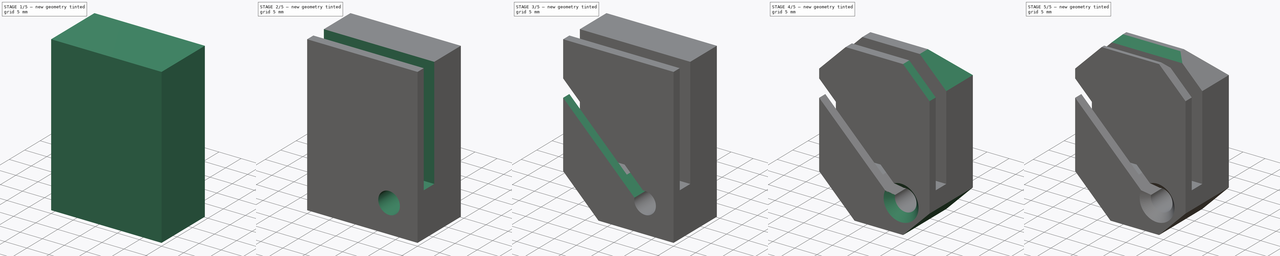
[diagram: build sequence overview — one tinted view per stage of 5, left to right]
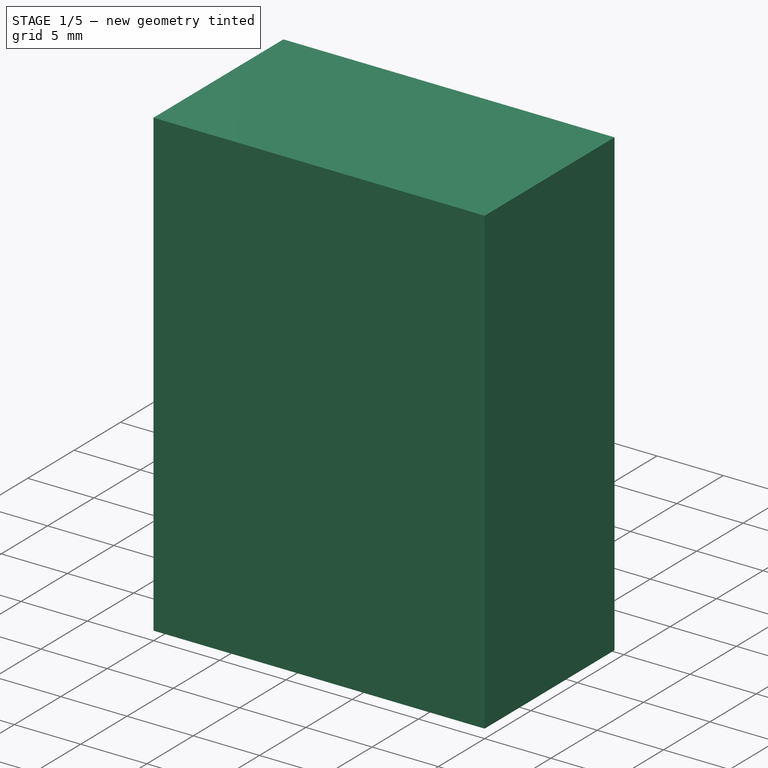
[diagram: stage 1 of 5 — iso view after this stage's code; geometry added in this stage tinted green]
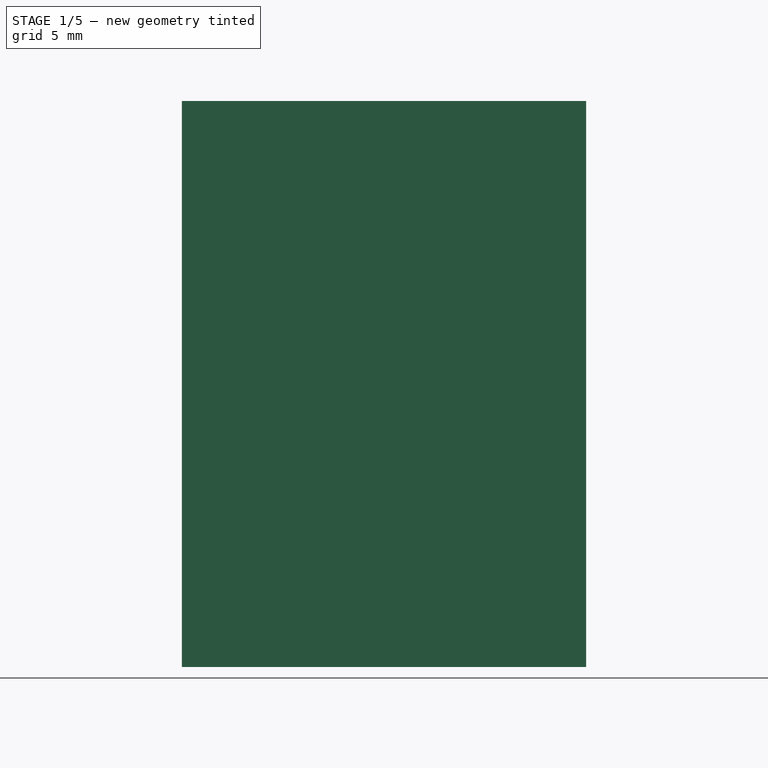
[diagram: stage 1 of 5 — front view after this stage's code; geometry added in this stage tinted green]
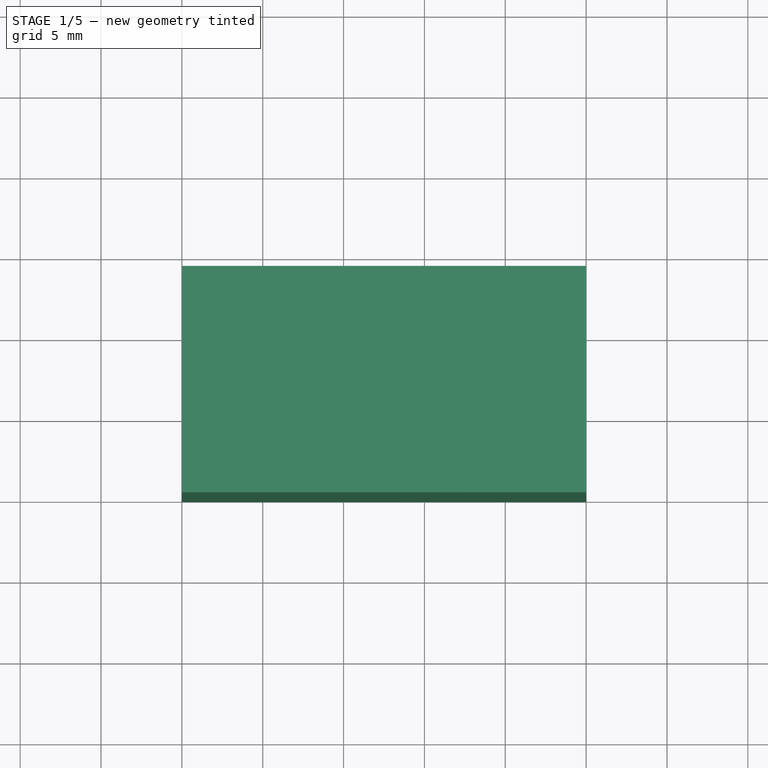
[diagram: stage 1 of 5 — top view after this stage's code; geometry added in this stage tinted green]
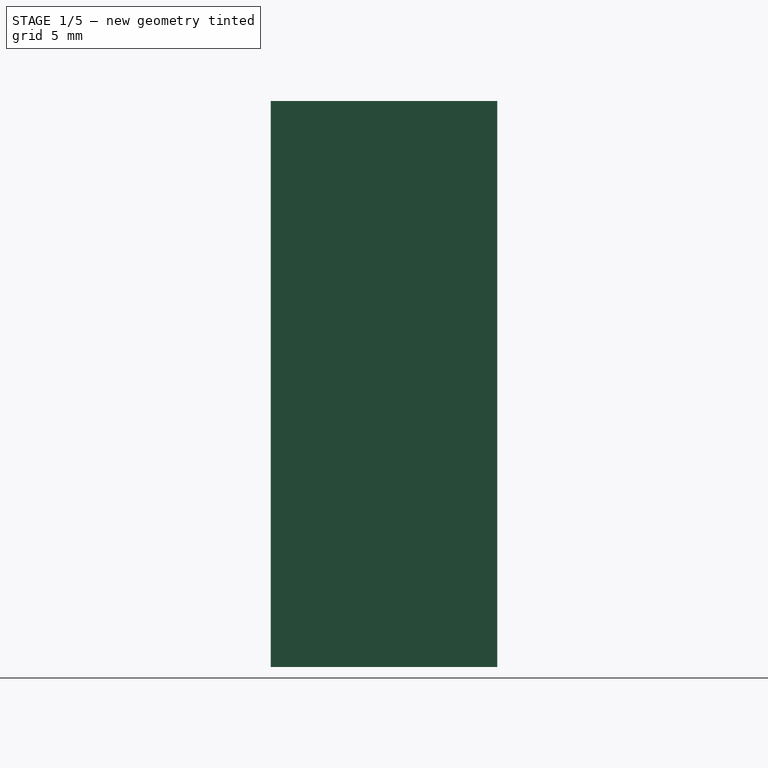
[diagram: stage 1 of 5 — right view after this stage's code; geometry added in this stage tinted green]
FCSTD DOCUMENT  (FreeCAD 0.16R5521 (Git))
Label: sujeccion-filamento
License: All rights reserved
LicenseURL: http://es.wikipedia.org/wiki/Todos_los_derechos_reservados
objects: PartDesign::Chamfer×8, Sketcher::SketchObject×6, PartDesign::Pocket×4, Part::Box×1, PartDesign::Pad×1, Part::MultiFuse×1
note: 26 computed .brp shape members not serialized (recipe doc carries the construction recipe); baked Part::Feature solids carry a one-line shape summary decoded from their .brp

FEATURE [Part::Box] Box  label="Cubo"
  Height = 35
  Length = 25
  Width = 14
FEATURE [Sketcher::SketchObject] Sketch003
  Placement = pos=(0,0,0) rot=(1,0,0;1.5708rad)
  sketch-geometry (6):
    g0: LineSegment StartX=14.5 StartY=23 StartZ=0 EndX=10.5 EndY=23 EndZ=0
    g1: LineSegment StartX=10.5 StartY=23 StartZ=0 EndX=10.5 EndY=27 EndZ=0
    g2: LineSegment StartX=10.5 StartY=27 StartZ=0 EndX=14.5 EndY=27 EndZ=0
    g3: LineSegment StartX=14.5 StartY=27 StartZ=0 EndX=14.5 EndY=23 EndZ=0
    g4: LineSegment [constr] StartX=25 StartY=10 StartZ=0 EndX=14.5 EndY=23 EndZ=0
    g5: LineSegment [constr] StartX=10.5 StartY=23 StartZ=0 EndX=0 EndY=10 EndZ=0
  constraints (13):
    c: Coincident(g0,g1)
    c: Coincident(g1,g2)
    c: Coincident(g2,g3)
    c: Coincident(g3,g0)
    c: Horizontal(g0)
    c: Horizontal(g2)
    c: Vertical(g1)
    c: Vertical(g3)
    c: Distance(g1) = 4
    c: Equal(g0,g1)
    c: Coincident(g4,g0)
    c: Coincident(g5,g0)
    c: Equal(g4,g5)
FEATURE [Sketcher::SketchObject] Sketch004
  Placement = pos=(0,0,0) rot=(1,0,0;1.5708rad)
FEATURE [PartDesign::Pad] Pad
  Length = 4
  Length2 = 100
  Placement = pos=(0,0,0) rot=(1,0,0;1.5708rad)
  Reversed = true
  Sketch = -> Sketch003
  Type = 0
FEATURE [PartDesign::Chamfer] Chamfer
  Base = -> Pad [Edge4,Edge7,Edge10,Edge12]
  Placement = pos=(0,0,0) rot=(1,0,0;1.5708rad)
  Size = 1.99
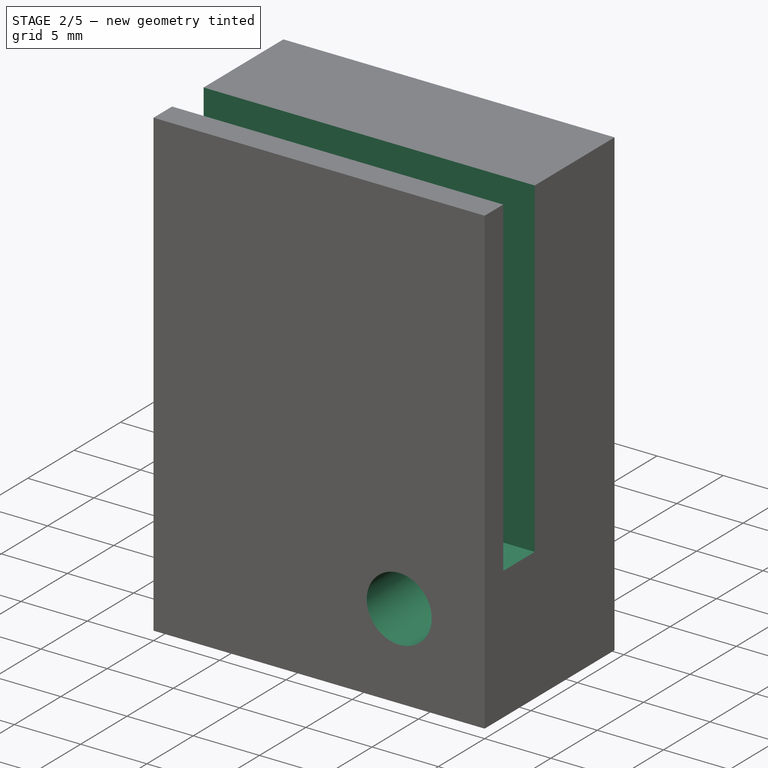
[diagram: stage 2 of 5 — iso view after this stage's code; geometry added in this stage tinted green]
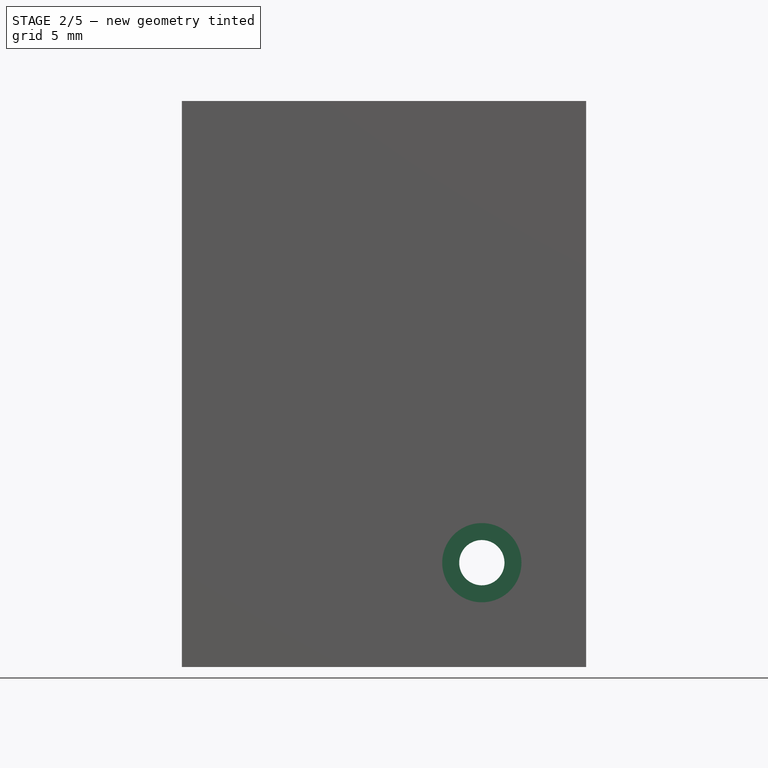
[diagram: stage 2 of 5 — front view after this stage's code; geometry added in this stage tinted green]
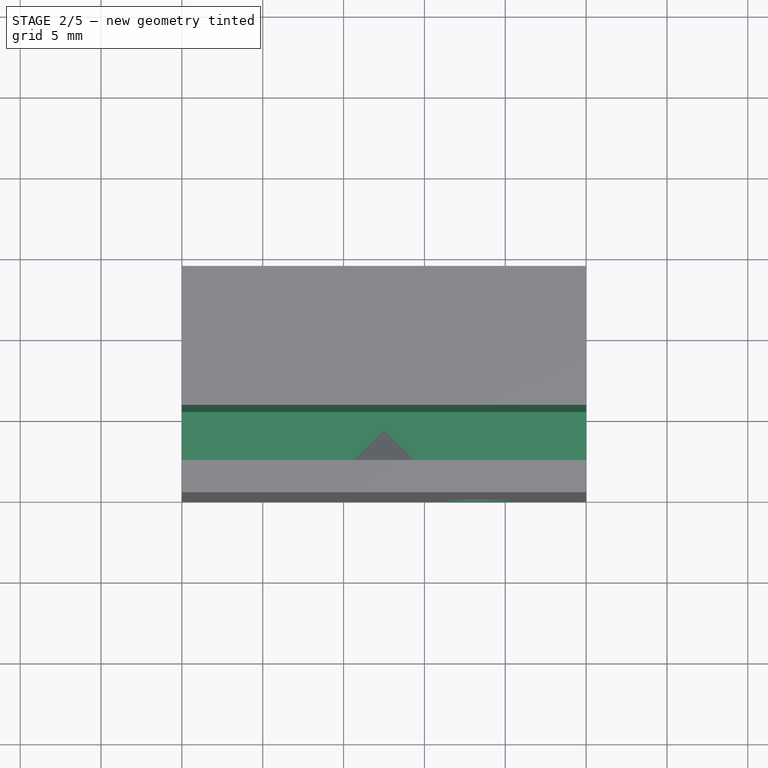
[diagram: stage 2 of 5 — top view after this stage's code; geometry added in this stage tinted green]
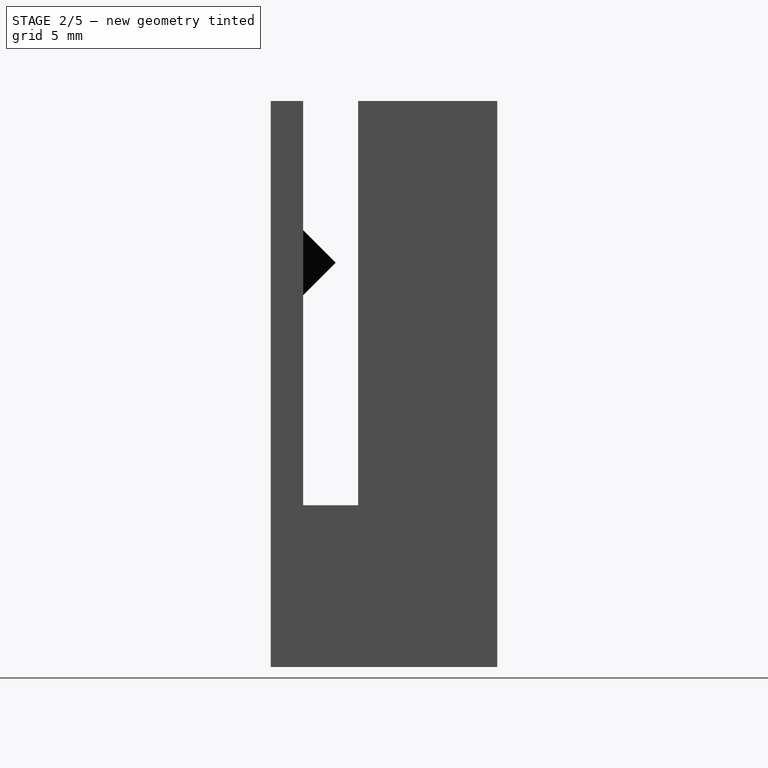
[diagram: stage 2 of 5 — right view after this stage's code; geometry added in this stage tinted green]
FEATURE [Sketcher::SketchObject] Sketch
  ExternalGeometry = -> [Box]
  Placement = pos=(0,0,35) rot=(0,0,1;0rad)
  Support = -> Box [Face6]
  sketch-geometry (4):
    g0: LineSegment StartX=25 StartY=5.4 StartZ=0 EndX=0 EndY=5.4 EndZ=0
    g1: LineSegment StartX=0 StartY=5.4 StartZ=0 EndX=0 EndY=2 EndZ=0
    g2: LineSegment StartX=0 StartY=2 StartZ=0 EndX=25 EndY=2 EndZ=0
    g3: LineSegment StartX=25 StartY=2 StartZ=0 EndX=25 EndY=5.4 EndZ=0
  constraints (12):
    c: Coincident(g0,g1)
    c: Coincident(g1,g2)
    c: Coincident(g2,g3)
    c: Coincident(g3,g0)
    c: Horizontal(g0)
    c: Horizontal(g2)
    c: Vertical(g1)
    c: Vertical(g3)
    c: PointOnObject(g0,g-4)
    c: PointOnObject(g1,g-3)
    c: Distance(g2,g0) = 3.4
    c: Distance(g-1,g1) = 2
FEATURE [PartDesign::Pocket] Pocket
  Length = 25
  Sketch = -> Sketch
  Type = 0
FEATURE [Sketcher::SketchObject] Sketch001
  ExternalGeometry = -> [Pocket]
  Placement = pos=(0,0,0) rot=(1,0,0;1.5708rad)
  Support = -> Pocket [Face9]
  sketch-geometry (5):
    g0: Circle CenterX=18.55 CenterY=6.45 CenterZ=0 NormalX=0 NormalY=0 NormalZ=1 Radius=2.45
    g1: LineSegment [constr] StartX=18.55 StartY=6.45 StartZ=0 EndX=25 EndY=0 EndZ=0
    g2: LineSegment [constr] StartX=8.47239 StartY=4 StartZ=0 EndX=21 EndY=4 EndZ=0
    g3: LineSegment [constr] StartX=18.55 StartY=0 StartZ=0 EndX=18.55 EndY=6.45 EndZ=0
    g4: LineSegment [constr] StartX=18.55 StartY=6.45 StartZ=0 EndX=25 EndY=6.45 EndZ=0
  constraints (14):
    c: Radius(g0) = 2.45
    c: Coincident(g1,g0)
    c: Coincident(g1,g-3)
    c: PointOnObject(g2,g1)
    c: Horizontal(g2)
    c: Tangent(g0,g2)
    c: Distance(g2,g-3) = 4
    c: PointOnObject(g3,g-3)
    c: Coincident(g3,g0)
    c: Vertical(g3)
    c: Coincident(g3,g4)
    c: Horizontal(g4)
    c: PointOnObject(g4,g-4)
    c: Equal(g3,g4)
FEATURE [PartDesign::Pocket] Pocket001
  Length = 8
  Sketch = -> Sketch001
  Type = 0
FEATURE [Sketcher::SketchObject] Sketch002
  ExternalGeometry = -> [Pocket001]
  Placement = pos=(0,8,0) rot=(1,0,0;1.5708rad)
  Support = -> Pocket001 [Face12]
  sketch-geometry (1):
    g0: Circle CenterX=18.55 CenterY=6.45 CenterZ=0 NormalX=0 NormalY=0 NormalZ=1 Radius=1.4
  constraints (2):
    c: Coincident(g0,g-3)
    c: Radius(g0) = 1.4
FEATURE [PartDesign::Pocket] Pocket002
  Length = 5
  Sketch = -> Sketch002
  Type = 1
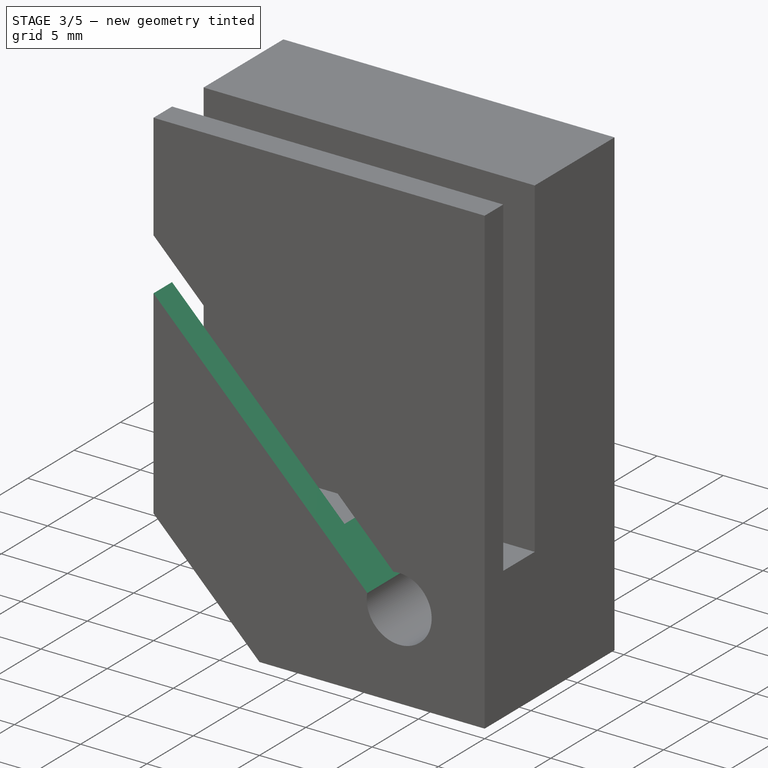
[diagram: stage 3 of 5 — iso view after this stage's code; geometry added in this stage tinted green]
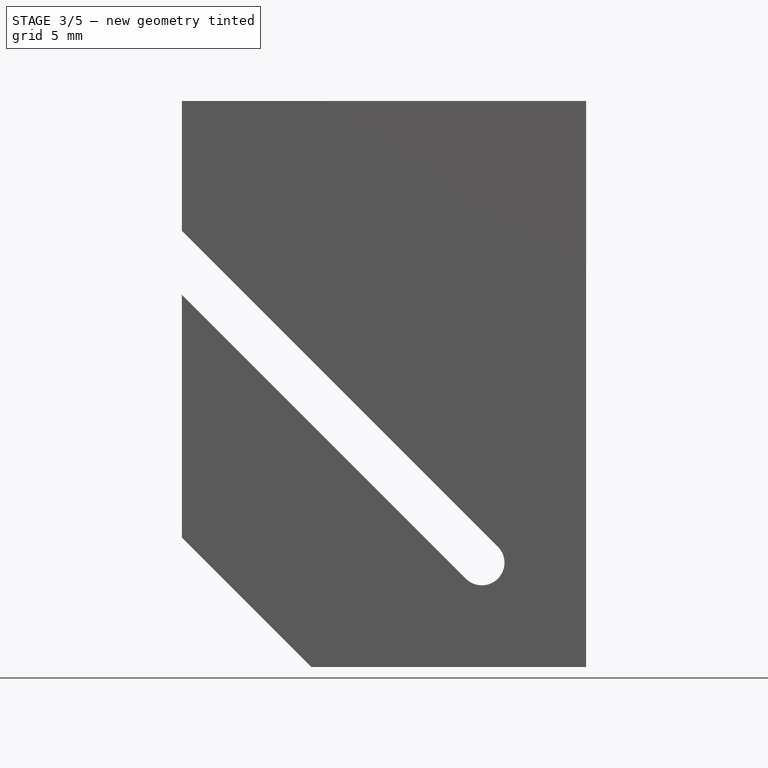
[diagram: stage 3 of 5 — front view after this stage's code; geometry added in this stage tinted green]
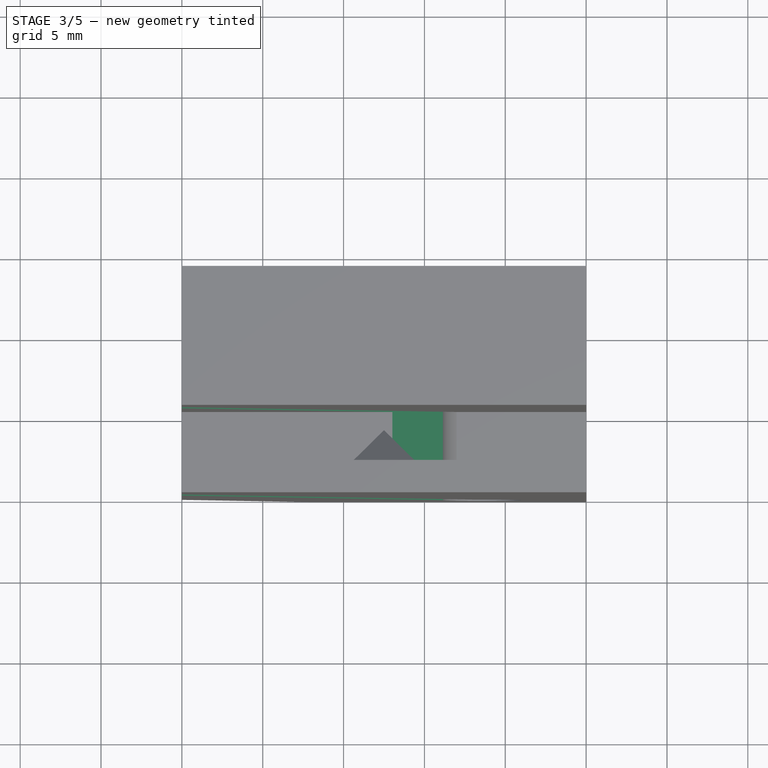
[diagram: stage 3 of 5 — top view after this stage's code; geometry added in this stage tinted green]
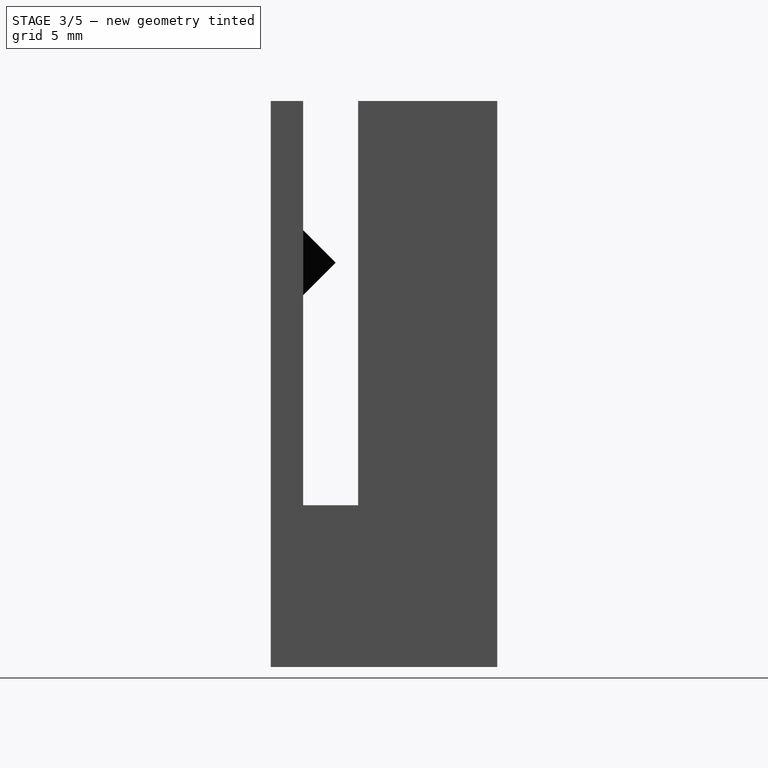
[diagram: stage 3 of 5 — right view after this stage's code; geometry added in this stage tinted green]
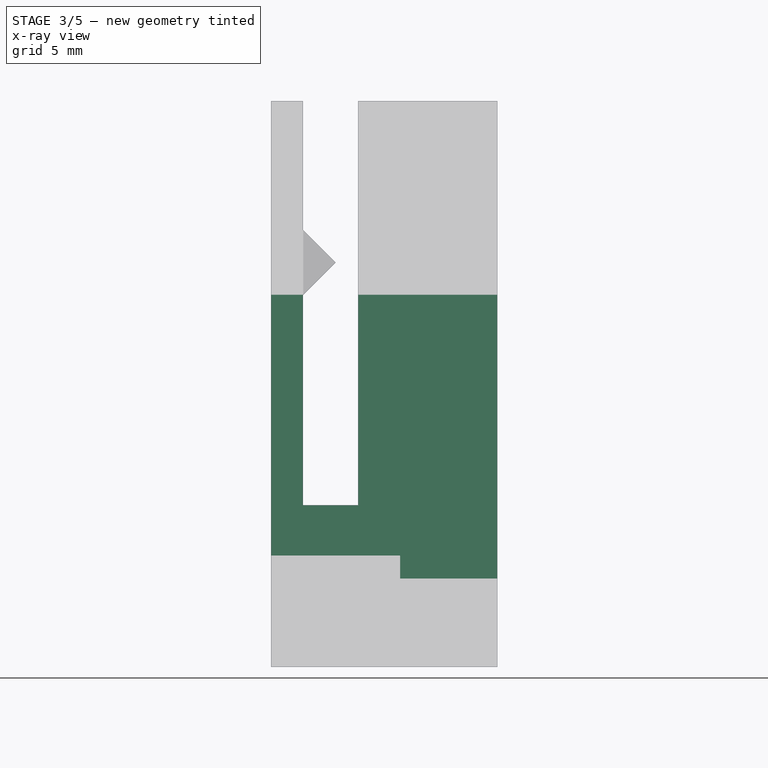
[diagram: stage 3 of 5 — x-ray composite at the right view; earlier geometry ghosted, this stage's added geometry solid]
FEATURE [Part::MultiFuse] Fusion
  Shapes = -> [Chamfer,Pocket002]
FEATURE [Sketcher::SketchObject] Sketch005
  ExternalGeometry = -> [Fusion]
  Placement = pos=(0,0,0) rot=(1,0,0;1.5708rad)
  Support = -> Fusion [Face22]
  sketch-geometry (5):
    g0: ArcOfCircle CenterX=18.55 CenterY=6.45 CenterZ=0 NormalX=0 NormalY=0 NormalZ=1 Radius=1.4 StartAngle=0.785398 EndAngle=3.92699
    g1: LineSegment StartX=19.5399 StartY=7.43995 StartZ=0 EndX=0 EndY=26.9799 EndZ=0
    g2: LineSegment StartX=17.5601 StartY=5.46005 StartZ=0 EndX=0 EndY=23.0201 EndZ=0
    g3: LineSegment [constr] StartX=19.5399 StartY=7.43995 StartZ=0 EndX=17.5601 EndY=5.46005 EndZ=0
    g4: LineSegment StartX=0 StartY=26.9799 StartZ=0 EndX=0 EndY=23.0201 EndZ=0
  constraints (14):
    c: Coincident(g0,g-4)
    c: PointOnObject(g0,g-3)
    c: Coincident(g1,g0)
    c: Coincident(g2,g0)
    c: Coincident(g3,g0)
    c: Coincident(g3,g0)
    c: Parallel(g2,g1)
    c: PointOnObject(g0,g3)
    c: Perpendicular(g1,g3)
    c: PointOnObject(g2,g-5)
    c: PointOnObject(g1,g-5)
    c: Coincident(g4,g1)
    c: Coincident(g4,g2)
    c: Angle(g-5,g1) = 0.785398
FEATURE [PartDesign::Pocket] Pocket003
  Length = 17
  Sketch = -> Sketch005
  Type = 0
FEATURE [PartDesign::Chamfer] Chamfer001
  Base = -> Pocket003 [Edge36]
  Size = 8
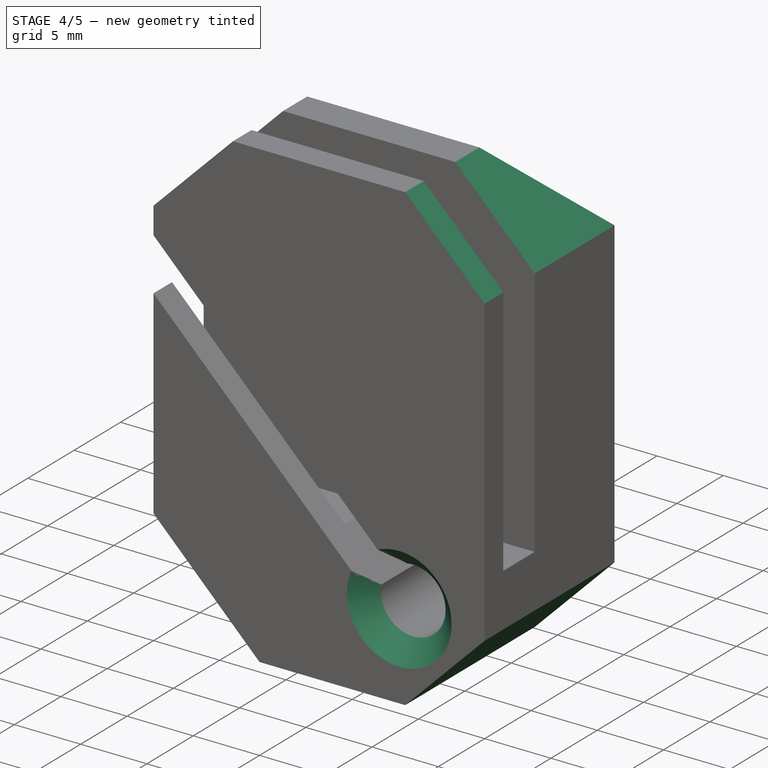
[diagram: stage 4 of 5 — iso view after this stage's code; geometry added in this stage tinted green]
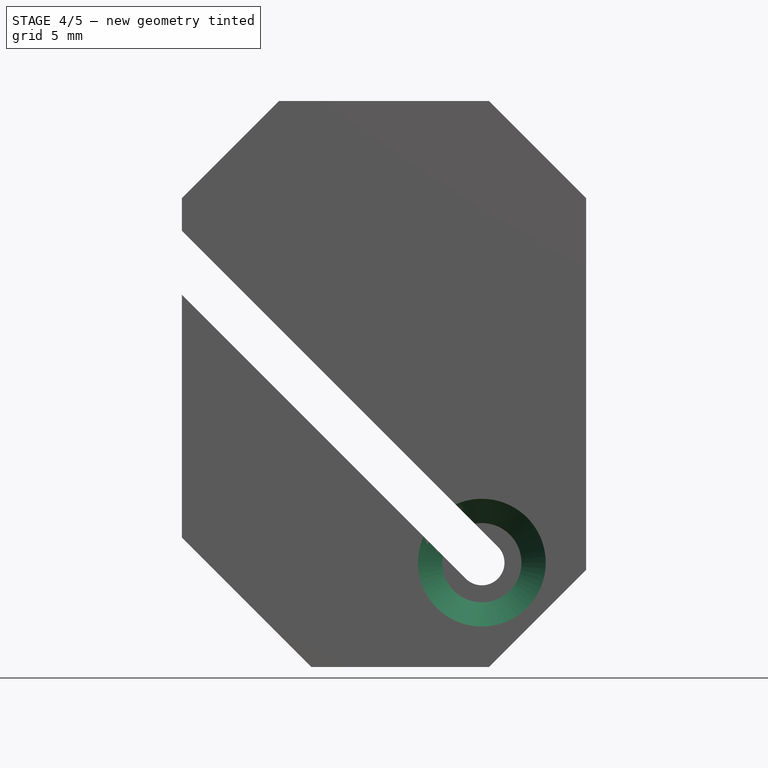
[diagram: stage 4 of 5 — front view after this stage's code; geometry added in this stage tinted green]
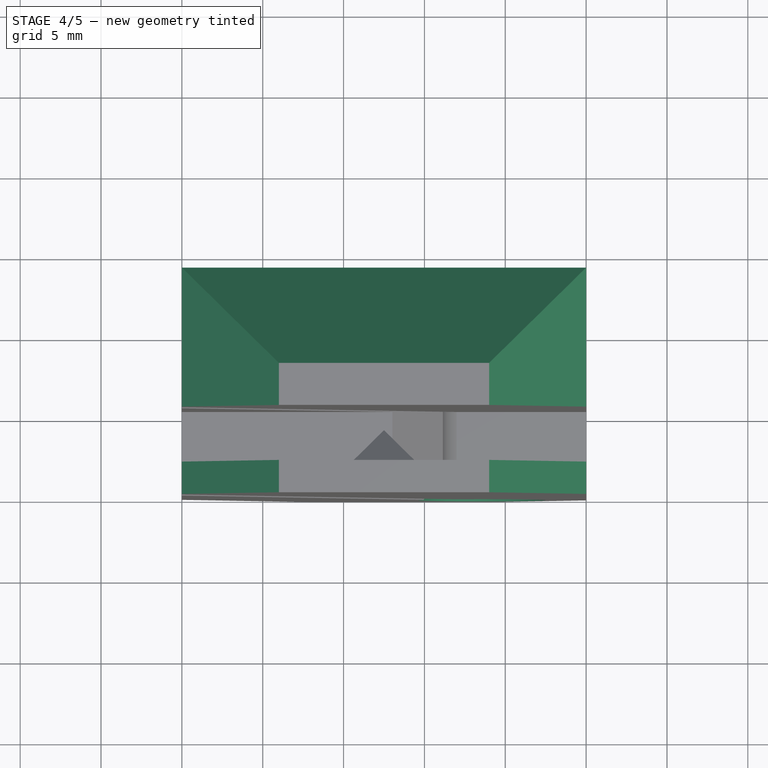
[diagram: stage 4 of 5 — top view after this stage's code; geometry added in this stage tinted green]
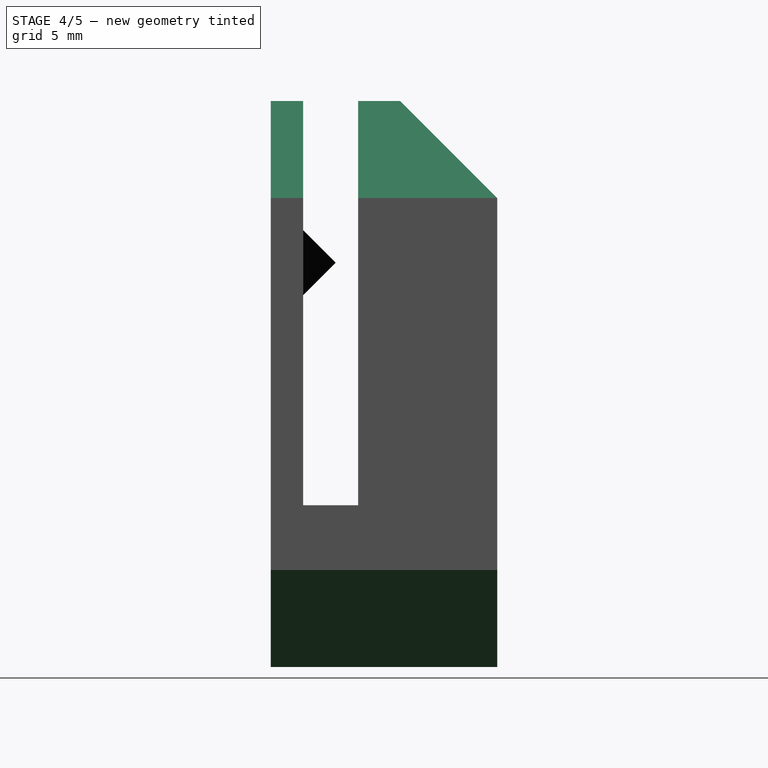
[diagram: stage 4 of 5 — right view after this stage's code; geometry added in this stage tinted green]
FEATURE [PartDesign::Chamfer] Chamfer002
  Base = -> Chamfer001 [Edge28]
  Size = 6
FEATURE [PartDesign::Chamfer] Chamfer003
  Base = -> Chamfer002 [Edge56,Edge20,Edge31,Edge22,Edge52]
  Size = 6
FEATURE [PartDesign::Chamfer] Chamfer004
  Base = -> Chamfer003 [Edge12]
  Size = 1.5
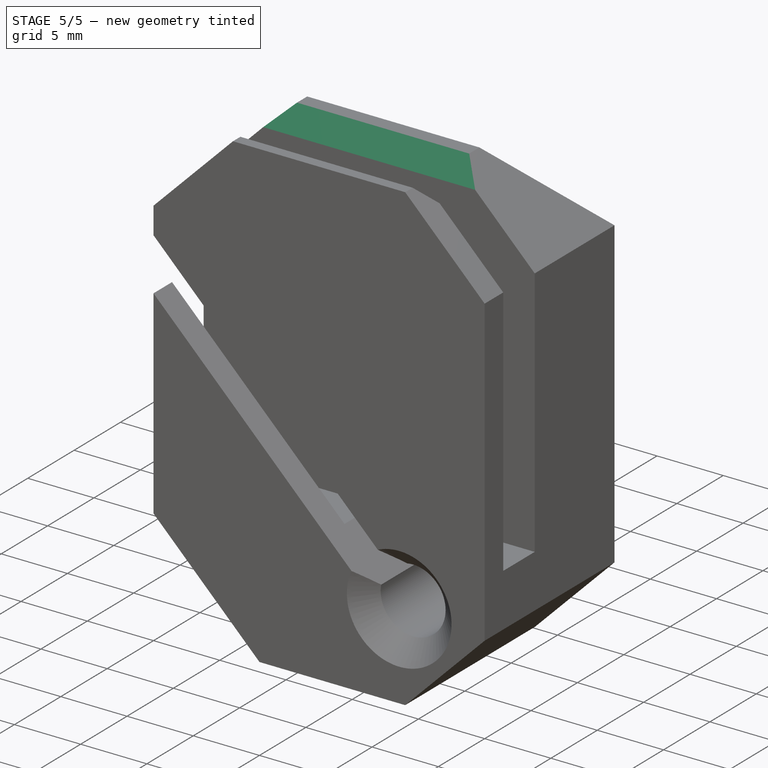
[diagram: stage 5 of 5 — iso view after this stage's code; geometry added in this stage tinted green]
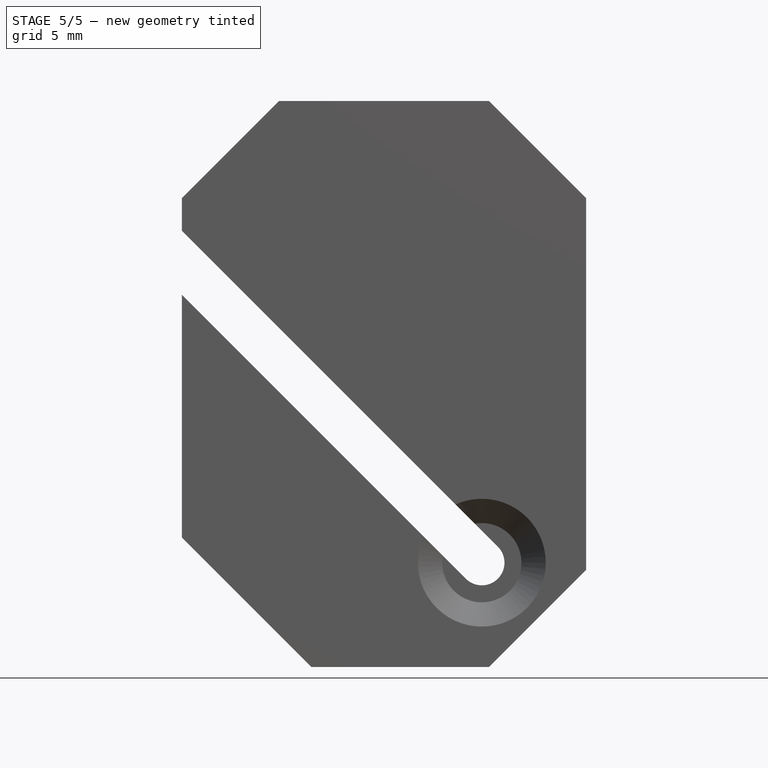
[diagram: stage 5 of 5 — front view after this stage's code; geometry added in this stage tinted green]
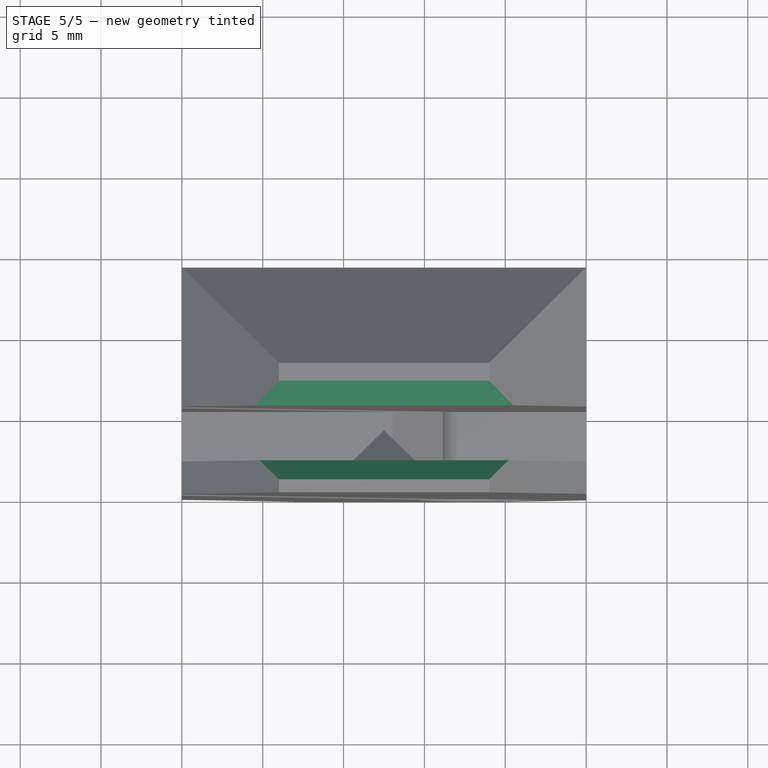
[diagram: stage 5 of 5 — top view after this stage's code; geometry added in this stage tinted green]
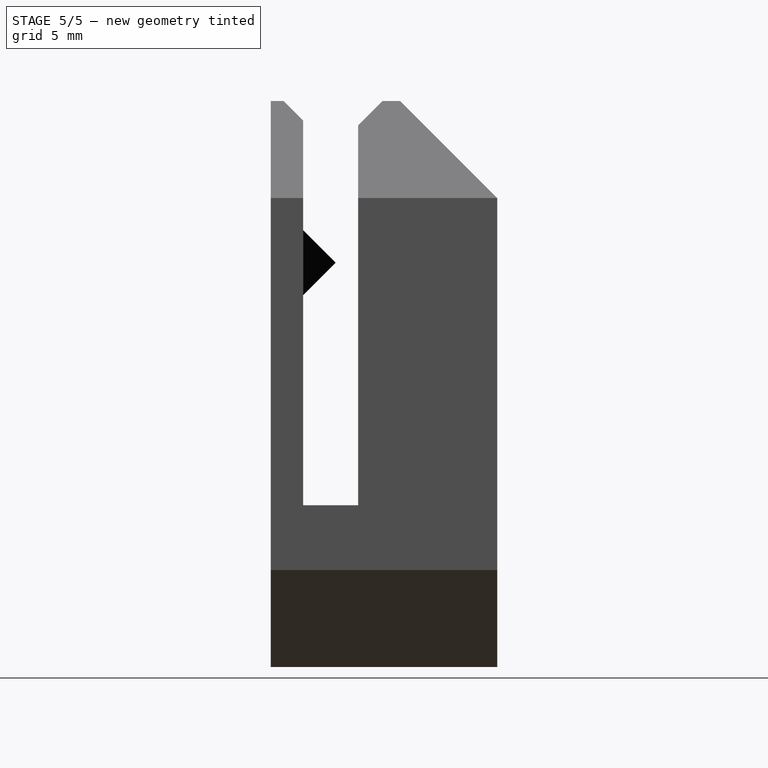
[diagram: stage 5 of 5 — right view after this stage's code; geometry added in this stage tinted green]
FEATURE [PartDesign::Chamfer] Chamfer005
  Base = -> Chamfer004 [Edge65]
  Size = 1.4
FEATURE [PartDesign::Chamfer] Chamfer006
  Base = -> Chamfer005 [Edge49]
  Size = 1.2
FEATURE [PartDesign::Chamfer] Chamfer007
  Base = -> Chamfer006 [Edge72]
  Size = 1.5
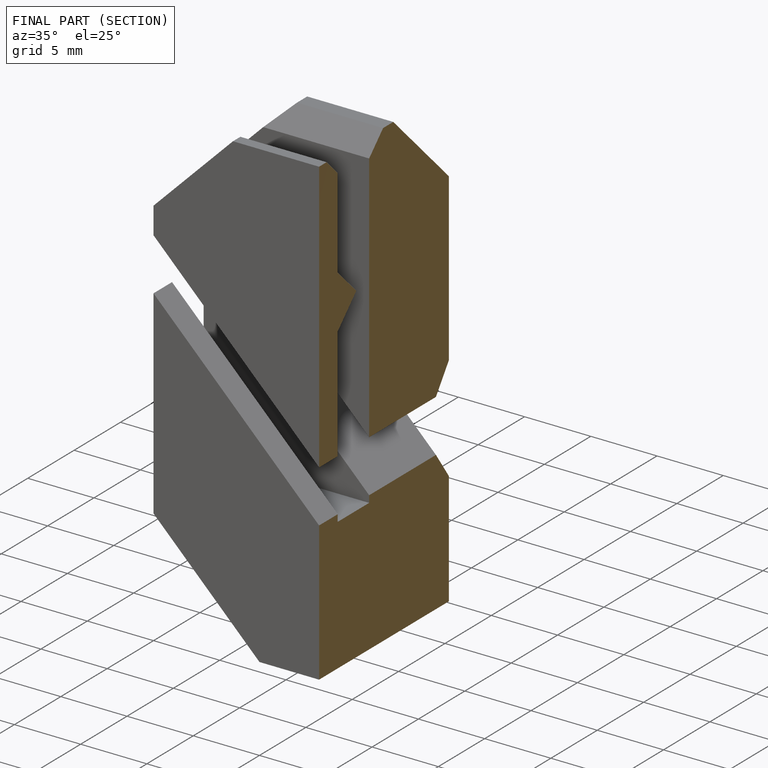
[diagram: finished part — half-section view (interior)]
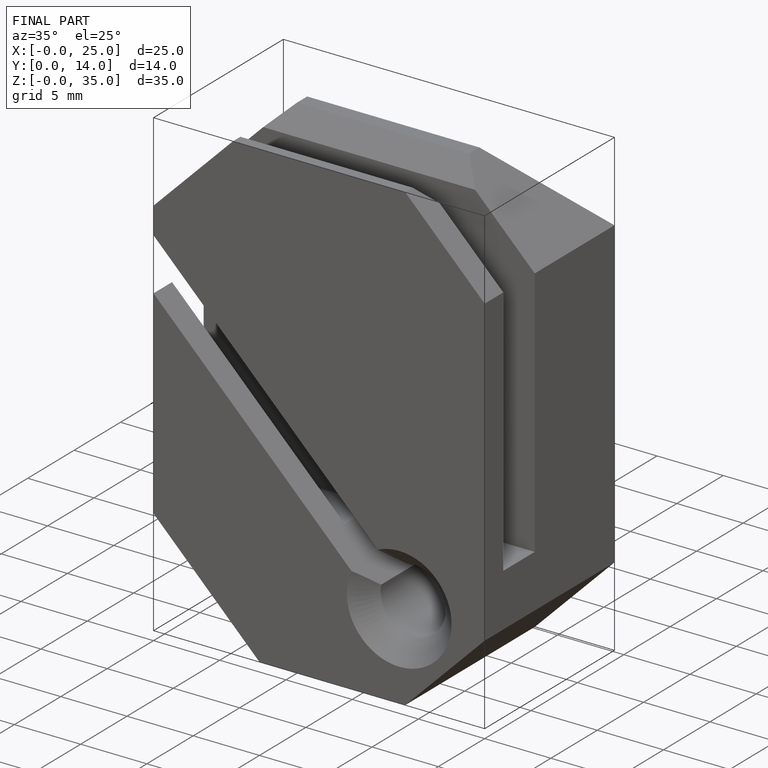
[diagram: finished part — iso view with bounding-box wireframe]
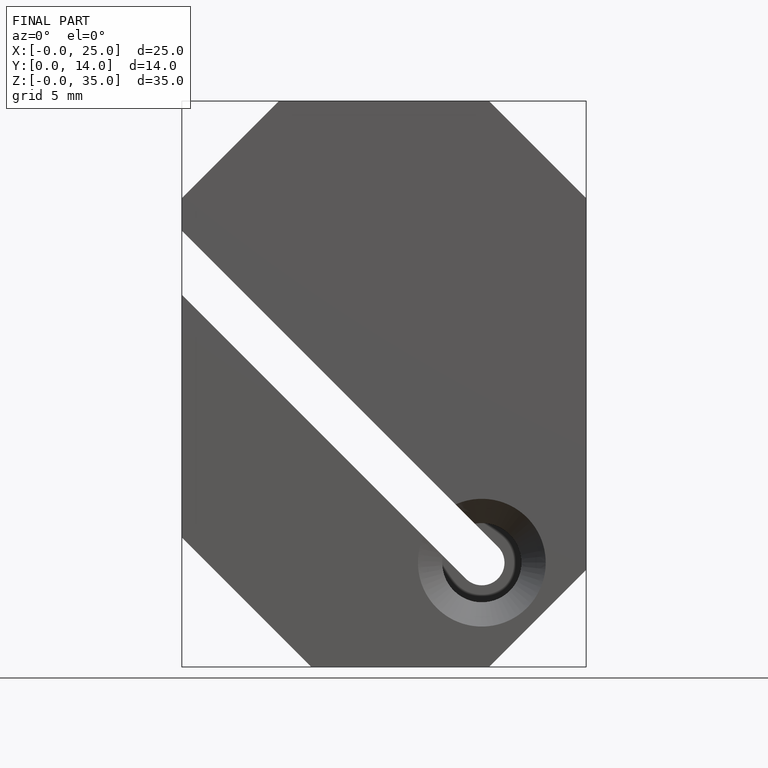
[diagram: finished part — front view with bounding-box wireframe]
